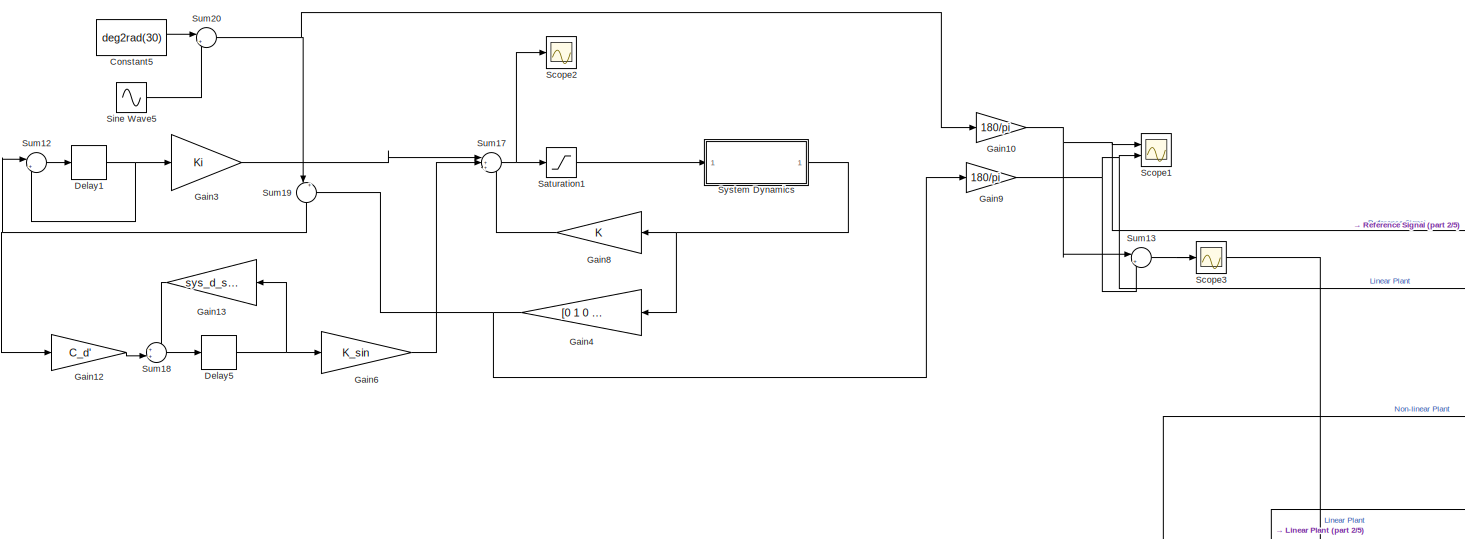
[diagram: root canvas - part 1/5, top center region]
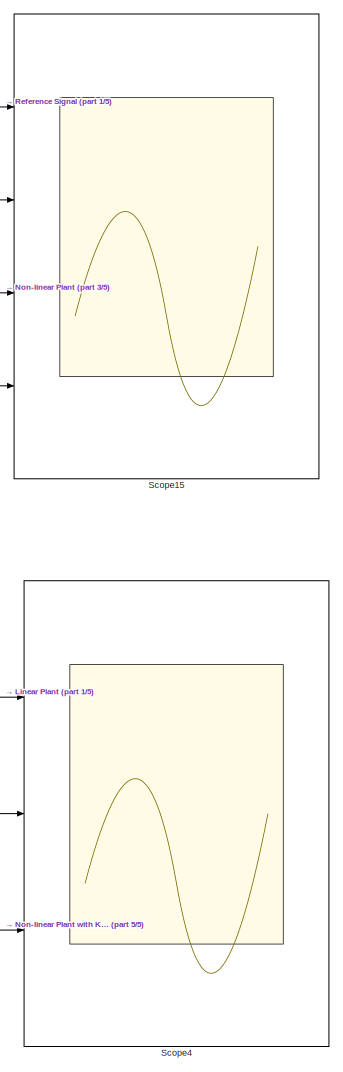
[diagram: root canvas - part 2/5, middle right region]
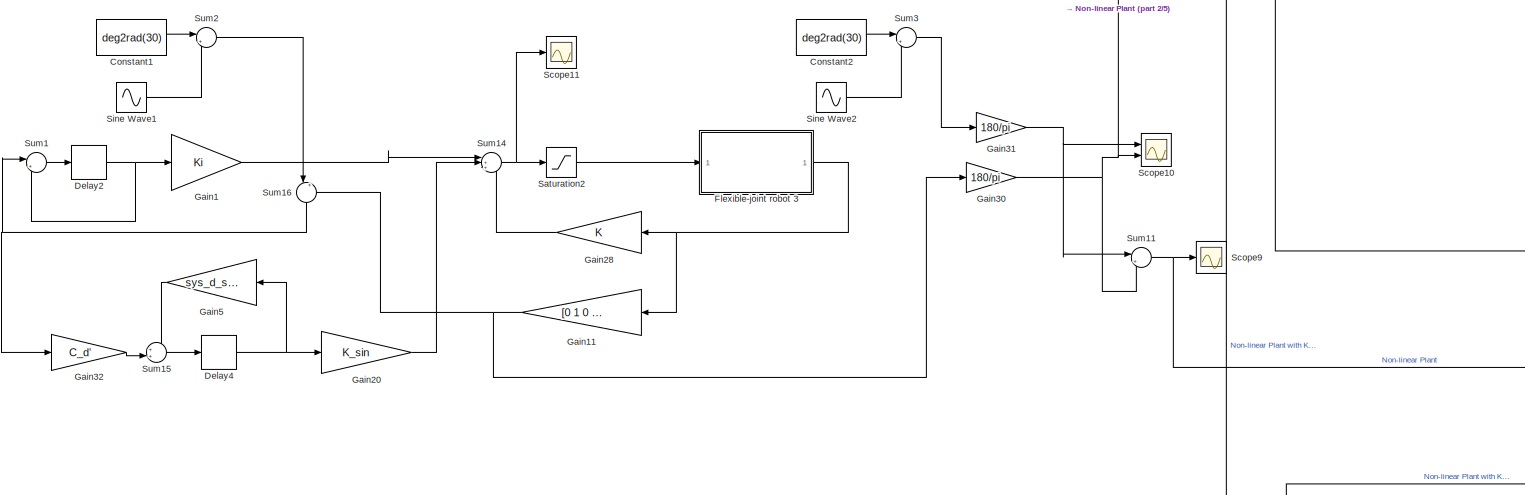
[diagram: root canvas - part 3/5, central region]
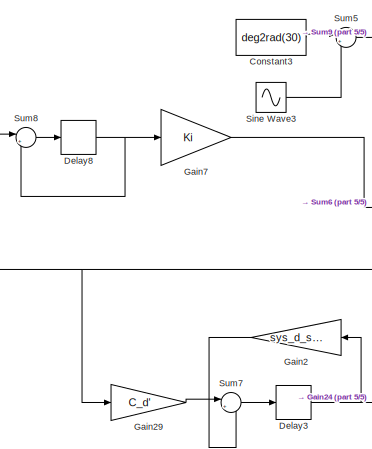
[diagram: root canvas - part 4/5, bottom left region]
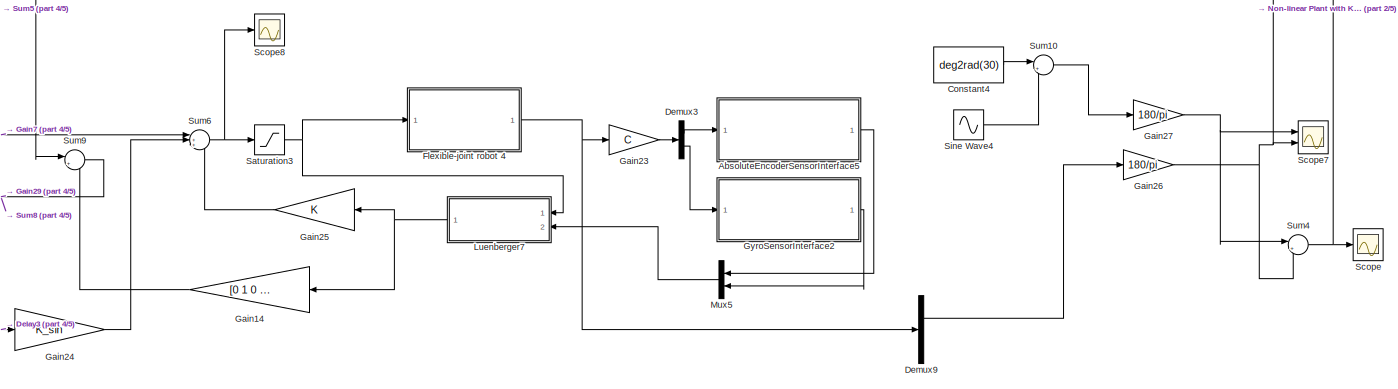
[diagram: root canvas - part 5/5, bottom center region]
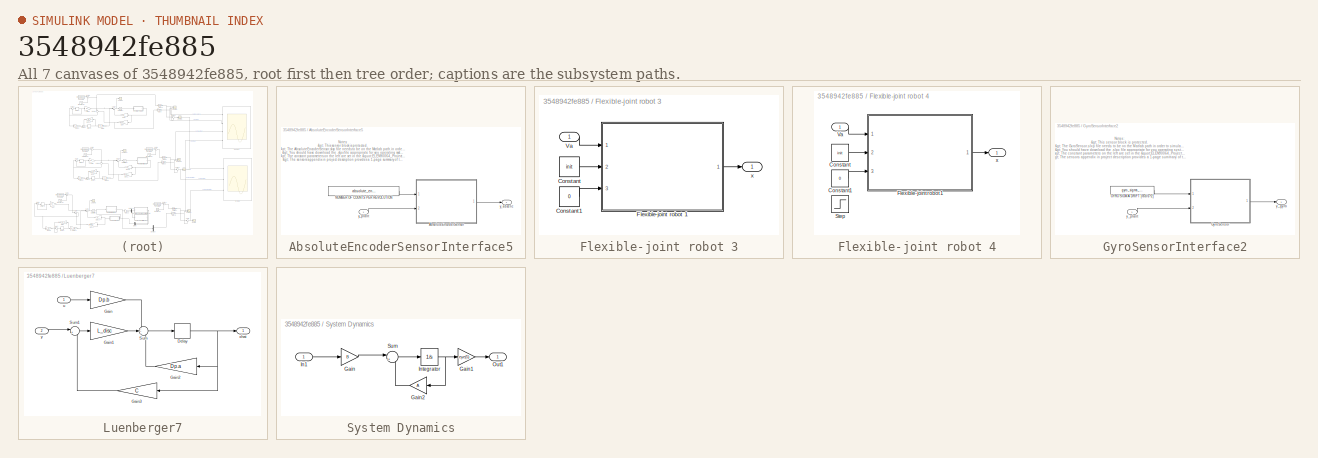
[diagram: thumbnail index - all 7 canvases of the model, root first then tree order]
MODEL slx_3548942fe885
KIND model
CONFIG AbsTol = auto
CONFIG EnableMultiTasking = off
CONFIG FixedStep = auto
CONFIG MaxStep = auto
CONFIG MinStep = auto
CONFIG RelTol = 1e-3
CONFIG SampleTimeConstraint = Unconstrained
CONFIG SolverName = ode45
CONFIG StartTime = 0.0
CONFIG StopTime = 11
BLOCK [SubSystem] AbsoluteEncoderSensorInterface5
  Ports = [1, 1]
  RequestExecContextInheritance = off
  TreatAsAtomicUnit = on
BLOCK [ModelReference] AbsoluteEncoderSensorInterface5/AbsoluteEncoderSensor
  CopyOfModelProtected = on
  ModelNameDialog = AbsoluteEncoderSensor.slxp
  ModelReferenceVersion = 1.16
  Ports = [2, 1]
BLOCK [Constant] AbsoluteEncoderSensorInterface5/NUMBER OF COUNTS PER REVOLUTION
  Value = absolute_encoder_counts_per_revolution
BLOCK [Outport] AbsoluteEncoderSensorInterface5/y_absenc
BLOCK [Inport] AbsoluteEncoderSensorInterface5/y_plant
BLOCK [Constant] Constant1
  Value = deg2rad(30)
BLOCK [Constant] Constant2
  Value = deg2rad(30)
BLOCK [Constant] Constant3
  Value = deg2rad(30)
BLOCK [Constant] Constant4
  Value = deg2rad(30)
BLOCK [Constant] Constant5
  Value = deg2rad(30)
BLOCK [Delay] Delay1
  DelayLength = 1
  InputPortMap = u0
  Ports = [1, 1]
BLOCK [Delay] Delay2
  DelayLength = 1
  InputPortMap = u0
  Ports = [1, 1]
BLOCK [Delay] Delay3
  DelayLength = 1
  InputPortMap = u0
  Ports = [1, 1]
BLOCK [Delay] Delay4
  DelayLength = 1
  InputPortMap = u0
  Ports = [1, 1]
BLOCK [Delay] Delay5
  DelayLength = 1
  InputPortMap = u0
  Ports = [1, 1]
BLOCK [Delay] Delay8
  DelayLength = 1
  InputPortMap = u0
  Ports = [1, 1]
BLOCK [Demux] Demux3
  Outputs = 2
  Ports = [1, 2]
BLOCK [Demux] Demux9
  Outputs = 5
  Ports = [1, 5]
BLOCK [SubSystem] Flexible-joint robot 3
  Ports = [1, 1]
  RequestExecContextInheritance = off
BLOCK [Constant] Flexible-joint robot 3/Constant
  Value = init
BLOCK [Constant] Flexible-joint robot 3/Constant1
  Value = 0
BLOCK [ModelReference] Flexible-joint robot 3/Flexible-joint robot 1
  CopyOfModelProtected = on
  ModelNameDialog = Flexible_joint_robot_1
  ModelReferenceVersion = 1.65
  Ports = [3, 1]
BLOCK [Inport] Flexible-joint robot 3/Va
BLOCK [Outport] Flexible-joint robot 3/x
BLOCK [SubSystem] Flexible-joint robot 4
  Ports = [1, 1]
  RequestExecContextInheritance = off
BLOCK [Constant] Flexible-joint robot 4/Constant
  Value = init
BLOCK [Constant] Flexible-joint robot 4/Constant1
  Value = 0
BLOCK [ModelReference] Flexible-joint robot 4/Flexible-joint robot 1
  CopyOfModelProtected = on
  ModelNameDialog = Flexible_joint_robot_1
  ModelReferenceVersion = 1.65
  Ports = [3, 1]
BLOCK [Step] Flexible-joint robot 4/Step
  After = 0.05
  SampleTime = 0
BLOCK [Inport] Flexible-joint robot 4/Va
BLOCK [Outport] Flexible-joint robot 4/x
BLOCK [Gain] Gain1
  Gain = Ki
  Multiplication = Matrix(K*u) (u vector)
BLOCK [Gain] Gain10
  Gain = 180/pi
BLOCK [Gain] Gain11
  Gain = [0 1 0 0 0]
  Multiplication = Matrix(K*u) (u vector)
  NameLocation = top
BLOCK [Gain] Gain12
  Gain = C_d'
  Multiplication = Matrix(K*u) (u vector)
BLOCK [Gain] Gain13
  Gain = sys_d_sin.a'
  Multiplication = Matrix(K*u) (u vector)
  NameLocation = top
BLOCK [Gain] Gain14
  Gain = [0 1 0 0 0]
  Multiplication = Matrix(K*u) (u vector)
  NameLocation = top
BLOCK [Gain] Gain2
  Gain = sys_d_sin.a'
  Multiplication = Matrix(K*u) (u vector)
  NameLocation = top
BLOCK [Gain] Gain20
  Gain = K_sin
  Multiplication = Matrix(K*u) (u vector)
BLOCK [Gain] Gain23
  Gain = C
  Multiplication = Matrix(K*u)
BLOCK [Gain] Gain24
  Gain = K_sin
  Multiplication = Matrix(K*u) (u vector)
BLOCK [Gain] Gain25
  Gain = K
  Multiplication = Matrix(K*u)
  NameLocation = top
BLOCK [Gain] Gain26
  Gain = 180/pi
BLOCK [Gain] Gain27
  Gain = 180/pi
BLOCK [Gain] Gain28
  Gain = K
  Multiplication = Matrix(K*u)
  NameLocation = top
BLOCK [Gain] Gain29
  Gain = C_d'
  Multiplication = Matrix(K*u) (u vector)
BLOCK [Gain] Gain3
  Gain = Ki
  Multiplication = Matrix(K*u) (u vector)
BLOCK [Gain] Gain30
  Gain = 180/pi
BLOCK [Gain] Gain31
  Gain = 180/pi
BLOCK [Gain] Gain32
  Gain = C_d'
  Multiplication = Matrix(K*u) (u vector)
BLOCK [Gain] Gain4
  Gain = [0 1 0 0 0]
  Multiplication = Matrix(K*u) (u vector)
  NameLocation = top
BLOCK [Gain] Gain5
  Gain = sys_d_sin.a'
  Multiplication = Matrix(K*u) (u vector)
  NameLocation = top
BLOCK [Gain] Gain6
  Gain = K_sin
  Multiplication = Matrix(K*u) (u vector)
BLOCK [Gain] Gain7
  Gain = Ki
  Multiplication = Matrix(K*u) (u vector)
BLOCK [Gain] Gain8
  Gain = K
  Multiplication = Matrix(K*u)
  NameLocation = top
BLOCK [Gain] Gain9
  Gain = 180/pi
BLOCK [SubSystem] GyroSensorInterface2
  Ports = [1, 1]
  RequestExecContextInheritance = off
  TreatAsAtomicUnit = on
BLOCK [Constant] GyroSensorInterface2/GYRO SIGMA DRIFT [rad//s^2]
  Value = gyro_sigma_drift
BLOCK [ModelReference] GyroSensorInterface2/GyroSensor
  CopyOfModelProtected = on
  ModelNameDialog = GyroSensor.slxp
  ModelReferenceVersion = 1.18
  Ports = [2, 1]
BLOCK [Outport] GyroSensorInterface2/y_gyro
BLOCK [Inport] GyroSensorInterface2/y_plant
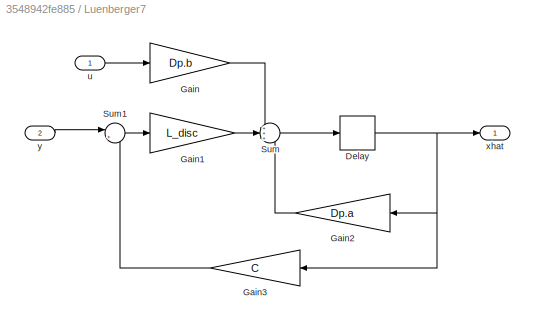
BLOCK [SubSystem] Luenberger7
  Ports = [2, 1]
  RequestExecContextInheritance = off
  TreatAsAtomicUnit = on
BLOCK [Delay] Luenberger7/Delay
  DelayLength = 1
  InputPortMap = u0
  Ports = [1, 1]
BLOCK [Gain] Luenberger7/Gain
  Gain = Dp.b
  Multiplication = Matrix(K*u) (u vector)
BLOCK [Gain] Luenberger7/Gain1
  Gain = L_disc
  Multiplication = Matrix(K*u) (u vector)
BLOCK [Gain] Luenberger7/Gain2
  Gain = Dp.a
  Multiplication = Matrix(K*u) (u vector)
  NameLocation = top
BLOCK [Gain] Luenberger7/Gain3
  Gain = C
  Multiplication = Matrix(K*u) (u vector)
  NameLocation = top
BLOCK [Sum] Luenberger7/Sum
  Inputs = +++
  Ports = [3, 1]
BLOCK [Sum] Luenberger7/Sum1
  Inputs = |+-
  Ports = [2, 1]
BLOCK [Inport] Luenberger7/u
BLOCK [Outport] Luenberger7/xhat
BLOCK [Inport] Luenberger7/y
  Port = 2
BLOCK [Mux] Mux5
  DisplayOption = bar
  Inputs = 2
  NameLocation = top
  Ports = [2, 1]
BLOCK [Saturate] Saturation1
  LowerLimit = -6
  UpperLimit = 6
BLOCK [Saturate] Saturation2
  LowerLimit = -6
  UpperLimit = 6
BLOCK [Saturate] Saturation3
  LowerLimit = -6
  UpperLimit = 6
BLOCK [Scope] Scope
  Floating = off
  NumInputPorts = 1
  Ports = [1]
  ScopeSpecificationString = Simulink.scopes.TimeScopeBlockCfg('CurrentConfiguration', extmgr.ConfigurationSet(extmgr.Configuration('Core','General UI',true),extmgr.Configuration('Core','Source UI',true),extmgr.Configuration('Sources','WiredSimulink',true,'DataLoggingVariableName','ScopeData4'),extmgr.Configuration('Visuals','Time Domain',true,'SerializedDisplays',{struct('MinYLimReal','-11.74633','MaxYLimReal','52.80653','YL...<+1444ch>
BLOCK [Scope] Scope1
  Floating = off
  NumInputPorts = 2
  Ports = [2]
  ScopeSpecificationString = Simulink.scopes.TimeScopeBlockCfg('CurrentConfiguration', extmgr.ConfigurationSet(extmgr.Configuration('Core','General UI',true),extmgr.Configuration('Core','Source UI',true),extmgr.Configuration('Sources','WiredSimulink',true),extmgr.Configuration('Visuals','Time Domain',true,'SerializedDisplays',{struct('MinYLimReal','-4.04292','MaxYLimReal','68.59449','YLabelReal','','MinYLimMag','0.00000','Max...<+1429ch>
BLOCK [Scope] Scope10
  Floating = off
  NumInputPorts = 2
  Ports = [2]
  ScopeSpecificationString = Simulink.scopes.TimeScopeBlockCfg('CurrentConfiguration', extmgr.ConfigurationSet(extmgr.Configuration('Core','General UI',true),extmgr.Configuration('Core','Source UI',true),extmgr.Configuration('Sources','WiredSimulink',true,'DataLoggingVariableName','ScopeData1'),extmgr.Configuration('Visuals','Time Domain',true,'SerializedDisplays',{struct('MinYLimReal','-8.46363','MaxYLimReal','75.27305','YLa...<+1462ch>
BLOCK [Scope] Scope11
  Floating = off
  NumInputPorts = 1
  Ports = [1]
  ScopeSpecificationString = Simulink.scopes.TimeScopeBlockCfg('CurrentConfiguration', extmgr.ConfigurationSet(extmgr.Configuration('Core','General UI',true),extmgr.Configuration('Core','Source UI',true),extmgr.Configuration('Sources','WiredSimulink',true,'DataLoggingVariableName','ScopeData2'),extmgr.Configuration('Visuals','Time Domain',true,'SerializedDisplays',{struct('MinYLimReal','-0.74704','MaxYLimReal','0.75328','YLab...<+1383ch>
BLOCK [Scope] Scope15
  Floating = off
  NumInputPorts = 4
  Ports = [4]
  ScopeSpecificationString = Simulink.scopes.TimeScopeBlockCfg('CurrentConfiguration', extmgr.ConfigurationSet(extmgr.Configuration('Core','General UI',true,'FigureColor',[1 1 1]),extmgr.Configuration('Core','Source UI',true),extmgr.Configuration('Sources','WiredSimulink',true,'DataLoggingVariableName','ScopeData9'),extmgr.Configuration('Visuals','Time Domain',true,'SerializedDisplays',{struct('MinYLimReal','-13.21636','MaxYL...<+2538ch>
BLOCK [Scope] Scope2
  Floating = off
  NumInputPorts = 1
  Ports = [1]
  ScopeSpecificationString = Simulink.scopes.TimeScopeBlockCfg('CurrentConfiguration', extmgr.ConfigurationSet(extmgr.Configuration('Core','General UI',true),extmgr.Configuration('Core','Source UI',true),extmgr.Configuration('Sources','WiredSimulink',true,'DataLoggingVariableName','ScopeData7'),extmgr.Configuration('Visuals','Time Domain',true,'SerializedDisplays',{struct('MinYLimReal','-8.34446','MaxYLimReal','18.70742','YLa...<+1387ch>
BLOCK [Scope] Scope3
  Floating = off
  NumInputPorts = 1
  Ports = [1]
  ScopeSpecificationString = Simulink.scopes.TimeScopeBlockCfg('CurrentConfiguration', extmgr.ConfigurationSet(extmgr.Configuration('Core','General UI',true),extmgr.Configuration('Core','Source UI',true),extmgr.Configuration('Sources','WiredSimulink',true,'DataLoggingVariableName','ScopeData8'),extmgr.Configuration('Visuals','Time Domain',true,'SerializedDisplays',{struct('MinYLimReal','-0.00317','MaxYLimReal','0.00138','YLab...<+1415ch>
BLOCK [Scope] Scope4
  Floating = off
  NumInputPorts = 3
  Ports = [3]
  ScopeSpecificationString = Simulink.scopes.TimeScopeBlockCfg('CurrentConfiguration', extmgr.ConfigurationSet(extmgr.Configuration('Core','General UI',true,'FigureColor',[1 1 1]),extmgr.Configuration('Core','Source UI',true),extmgr.Configuration('Sources','WiredSimulink',true,'DataLoggingVariableName','ScopeData10'),extmgr.Configuration('Visuals','Time Domain',true,'SerializedDisplays',{struct('MinYLimReal','-45.54688','MaxY...<+2491ch>
BLOCK [Scope] Scope7
  Floating = off
  NumInputPorts = 2
  Ports = [2]
  ScopeSpecificationString = Simulink.scopes.TimeScopeBlockCfg('CurrentConfiguration', extmgr.ConfigurationSet(extmgr.Configuration('Core','General UI',true),extmgr.Configuration('Core','Source UI',true),extmgr.Configuration('Sources','WiredSimulink',true,'DataLoggingVariableName','ScopeData5'),extmgr.Configuration('Visuals','Time Domain',true,'SerializedDisplays',{struct('MinYLimReal','-8.17143','MaxYLimReal','68.09844','YLa...<+1481ch>
BLOCK [Scope] Scope8
  Floating = off
  NumInputPorts = 1
  Ports = [1]
  ScopeSpecificationString = Simulink.scopes.TimeScopeBlockCfg('CurrentConfiguration', extmgr.ConfigurationSet(extmgr.Configuration('Core','General UI',true),extmgr.Configuration('Core','Source UI',true),extmgr.Configuration('Sources','WiredSimulink',true,'DataLoggingVariableName','ScopeData6'),extmgr.Configuration('Visuals','Time Domain',true,'SerializedDisplays',{struct('MinYLimReal','-7.54141','MaxYLimReal','7.71869','YLab...<+1382ch>
BLOCK [Scope] Scope9
  Floating = off
  NumInputPorts = 1
  Ports = [1]
  ScopeSpecificationString = Simulink.scopes.TimeScopeBlockCfg('CurrentConfiguration', extmgr.ConfigurationSet(extmgr.Configuration('Core','General UI',true),extmgr.Configuration('Core','Source UI',true),extmgr.Configuration('Sources','WiredSimulink',true,'DataLoggingVariableName','ScopeData3'),extmgr.Configuration('Visuals','Time Domain',true,'SerializedDisplays',{struct('MinYLimReal','-7.48944','MaxYLimReal','7.12736','YLab...<+1419ch>
BLOCK [Sin] Sine Wave1
  Amplitude = deg2rad(30)
  Frequency = w
  Phase = deg2rad(30)
  Ports = [0, 1]
  SampleTime = 0
BLOCK [Sin] Sine Wave2
  Amplitude = deg2rad(30)
  Frequency = w
  Phase = deg2rad(30)
  Ports = [0, 1]
  SampleTime = 0
BLOCK [Sin] Sine Wave3
  Amplitude = deg2rad(30)
  Frequency = w
  Phase = deg2rad(30)
  Ports = [0, 1]
  SampleTime = 0
BLOCK [Sin] Sine Wave4
  Amplitude = deg2rad(30)
  Frequency = w
  Phase = deg2rad(30)
  Ports = [0, 1]
  SampleTime = 0
BLOCK [Sin] Sine Wave5
  Amplitude = deg2rad(30)
  Frequency = w
  Phase = deg2rad(30)
  Ports = [0, 1]
  SampleTime = 0
BLOCK [Sum] Sum1
  Inputs = |++
  Ports = [2, 1]
BLOCK [Sum] Sum10
  Inputs = |++
  Ports = [2, 1]
BLOCK [Sum] Sum11
  Inputs = |+-
  Ports = [2, 1]
BLOCK [Sum] Sum12
  Inputs = |++
  Ports = [2, 1]
BLOCK [Sum] Sum13
  Inputs = |+-
  Ports = [2, 1]
BLOCK [Sum] Sum14
  Inputs = |++-
  Ports = [3, 1]
BLOCK [Sum] Sum15
  Inputs = ++|
  Ports = [2, 1]
BLOCK [Sum] Sum16
  Inputs = |+-
  NameLocation = left
  Ports = [2, 1]
BLOCK [Sum] Sum17
  Inputs = |++-
  Ports = [3, 1]
BLOCK [Sum] Sum18
  Inputs = ++|
  Ports = [2, 1]
BLOCK [Sum] Sum19
  Inputs = |+-
  NameLocation = left
  Ports = [2, 1]
BLOCK [Sum] Sum2
  Inputs = |++
  Ports = [2, 1]
BLOCK [Sum] Sum20
  Inputs = |++
  Ports = [2, 1]
BLOCK [Sum] Sum3
  Inputs = |++
  Ports = [2, 1]
BLOCK [Sum] Sum4
  Inputs = |+-
  Ports = [2, 1]
BLOCK [Sum] Sum5
  Inputs = |++
  Ports = [2, 1]
BLOCK [Sum] Sum6
  Inputs = |++-
  Ports = [3, 1]
BLOCK [Sum] Sum7
  Inputs = |++
  Ports = [2, 1]
BLOCK [Sum] Sum8
  Inputs = |++
  Ports = [2, 1]
BLOCK [Sum] Sum9
  Inputs = |+-
  Ports = [2, 1]
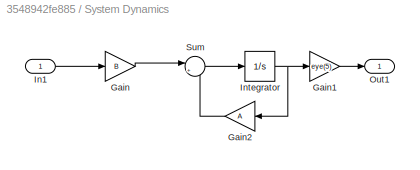
BLOCK [SubSystem] System Dynamics
  Ports = [1, 1]
  RequestExecContextInheritance = off
  TreatAsAtomicUnit = on
BLOCK [Gain] System Dynamics/Gain
  Gain = B
  Multiplication = Matrix(K*u)
BLOCK [Gain] System Dynamics/Gain1
  Gain = eye(5)
  Multiplication = Matrix(K*u)
BLOCK [Gain] System Dynamics/Gain2
  Gain = A
  Multiplication = Matrix(K*u)
  NameLocation = top
BLOCK [Inport] System Dynamics/In1
BLOCK [Integrator] System Dynamics/Integrator
  Ports = [1, 1]
BLOCK [Outport] System Dynamics/Out1
BLOCK [Sum] System Dynamics/Sum
  Inputs = |++
  Ports = [2, 1]
ANNOTATION AbsoluteEncoderSensorInterface5: Notes: > This sensor block is protected. > The AbsoluteEncoderSensor.slxp file needs to be on the Matlab path in order to simulate this sensor. > You should have download the .slpx file appropriate for you operating system {Windows, Mac, Linux}. > The constant parameters on the left are set in the " ELEN90064_Project_Parameters.m " script. > The sensors appendix in project description provides a 1...<+190ch>
ANNOTATION GyroSensorInterface2: Notes: > This sensor block is protected. > The GyroSensor.slxp file needs to be on the Matlab path in order to simulate this sensor. > You should have download the .slpx file appropriate for you operating system {Windows, Mac, Linux}. > The constant parameters on the left are set in the " ELEN90064_Project_Parameters.m " script. > The sensors appendix in project description provides a 1-page summa...<+179ch>
LINE AbsoluteEncoderSensorInterface5/AbsoluteEncoderSensor:1 -> AbsoluteEncoderSensorInterface5/y_absenc:1
LINE AbsoluteEncoderSensorInterface5/NUMBER OF COUNTS PER REVOLUTION:1 -> AbsoluteEncoderSensorInterface5/AbsoluteEncoderSensor:1
LINE AbsoluteEncoderSensorInterface5/y_plant:1 -> AbsoluteEncoderSensorInterface5/AbsoluteEncoderSensor:2
LINE AbsoluteEncoderSensorInterface5:1 -> Mux5:1
LINE Constant1:1 -> Sum2:1
LINE Constant2:1 -> Sum3:1
LINE Constant3:1 -> Sum5:1
LINE Constant4:1 -> Sum10:1
LINE Constant5:1 -> Sum20:1
NET Delay1:1 -> Gain3:1, Sum12:2
NET Delay2:1 -> Gain1:1, Sum1:2
NET Delay3:1 -> Gain24:1, Gain2:1
NET Delay4:1 -> Gain20:1, Gain5:1
NET Delay5:1 -> Gain13:1, Gain6:1
NET Delay8:1 -> Gain7:1, Sum8:2
LINE Demux3:1 -> AbsoluteEncoderSensorInterface5:1
LINE Demux3:2 -> GyroSensorInterface2:1
LINE Demux9:2 -> Gain26:1
LINE Flexible-joint robot 3/Constant1:1 -> Flexible-joint robot 3/Flexible-joint robot 1:3
LINE Flexible-joint robot 3/Constant:1 -> Flexible-joint robot 3/Flexible-joint robot 1:2
LINE Flexible-joint robot 3/Flexible-joint robot 1:1 -> Flexible-joint robot 3/x:1
LINE Flexible-joint robot 3/Va:1 -> Flexible-joint robot 3/Flexible-joint robot 1:1
NET Flexible-joint robot 3:1 -> Gain11:1, Gain28:1
LINE Flexible-joint robot 4/Constant1:1 -> Flexible-joint robot 4/Flexible-joint robot 1:3
LINE Flexible-joint robot 4/Constant:1 -> Flexible-joint robot 4/Flexible-joint robot 1:2
LINE Flexible-joint robot 4/Flexible-joint robot 1:1 -> Flexible-joint robot 4/x:1
LINE Flexible-joint robot 4/Va:1 -> Flexible-joint robot 4/Flexible-joint robot 1:1
NET Flexible-joint robot 4:1 -> Demux9:1, Gain23:1
NET Gain10:1 -> Scope15:1, Scope1:1, Sum13:1
NET Gain11:1 -> Gain30:1, Sum16:2
LINE Gain12:1 -> Sum18:2
LINE Gain13:1 -> Sum18:1
LINE Gain14:1 -> Sum9:2
LINE Gain1:1 -> Sum14:1
LINE Gain20:1 -> Sum14:2
LINE Gain23:1 -> Demux3:1
LINE Gain24:1 -> Sum6:2
LINE Gain25:1 -> Sum6:3
NET Gain26:1 -> Scope15:4, Scope7:2, Sum4:2
NET Gain27:1 -> Scope7:1, Sum4:1
LINE Gain28:1 -> Sum14:3
LINE Gain29:1 -> Sum7:1
LINE Gain2:1 -> Sum7:2
NET Gain30:1 -> Scope10:2, Scope15:3, Sum11:2
NET Gain31:1 -> Scope10:1, Sum11:1
LINE Gain32:1 -> Sum15:2
LINE Gain3:1 -> Sum17:1
NET Gain4:1 -> Gain9:1, Sum19:2
LINE Gain5:1 -> Sum15:1
LINE Gain6:1 -> Sum17:2
LINE Gain7:1 -> Sum6:1
LINE Gain8:1 -> Sum17:3
NET Gain9:1 -> Scope15:2, Scope1:2, Sum13:2
LINE GyroSensorInterface2/GYRO SIGMA DRIFT [rad//s^2]:1 -> GyroSensorInterface2/GyroSensor:1
LINE GyroSensorInterface2/GyroSensor:1 -> GyroSensorInterface2/y_gyro:1
LINE GyroSensorInterface2/y_plant:1 -> GyroSensorInterface2/GyroSensor:2
LINE GyroSensorInterface2:1 -> Mux5:2
NET Luenberger7/Delay:1 -> Luenberger7/Gain2:1, Luenberger7/Gain3:1, Luenberger7/xhat:1
LINE Luenberger7/Gain1:1 -> Luenberger7/Sum:2
LINE Luenberger7/Gain2:1 -> Luenberger7/Sum:3
LINE Luenberger7/Gain3:1 -> Luenberger7/Sum1:2
LINE Luenberger7/Gain:1 -> Luenberger7/Sum:1
LINE Luenberger7/Sum1:1 -> Luenberger7/Gain1:1
LINE Luenberger7/Sum:1 -> Luenberger7/Delay:1
LINE Luenberger7/u:1 -> Luenberger7/Gain:1
LINE Luenberger7/y:1 -> Luenberger7/Sum1:1
NET Luenberger7:1 -> Gain14:1, Gain25:1
LINE Mux5:1 -> Luenberger7:2
LINE Saturation1:1 -> System Dynamics:1
LINE Saturation2:1 -> Flexible-joint robot 3:1
NET Saturation3:1 -> Flexible-joint robot 4:1, Luenberger7:1
LINE Sine Wave1:1 -> Sum2:2
LINE Sine Wave2:1 -> Sum3:2
LINE Sine Wave3:1 -> Sum5:2
LINE Sine Wave4:1 -> Sum10:2
LINE Sine Wave5:1 -> Sum20:2
LINE Sum10:1 -> Gain27:1
NET Sum11:1 -> Scope4:2, Scope9:1
LINE Sum12:1 -> Delay1:1
NET Sum13:1 -> Scope3:1, Scope4:1
NET Sum14:1 -> Saturation2:1, Scope11:1
LINE Sum15:1 -> Delay4:1
NET Sum16:1 -> Gain32:1, Sum1:1
NET Sum17:1 -> Saturation1:1, Scope2:1
LINE Sum18:1 -> Delay5:1
NET Sum19:1 -> Gain12:1, Sum12:1
LINE Sum1:1 -> Delay2:1
NET Sum20:1 -> Gain10:1, Sum19:1
LINE Sum2:1 -> Sum16:1
LINE Sum3:1 -> Gain31:1
NET Sum4:1 -> Scope4:3, Scope:1
LINE Sum5:1 -> Sum9:1
NET Sum6:1 -> Saturation3:1, Scope8:1
LINE Sum7:1 -> Delay3:1
LINE Sum8:1 -> Delay8:1
NET Sum9:1 -> Gain29:1, Sum8:1
LINE System Dynamics/Gain1:1 -> System Dynamics/Out1:1
LINE System Dynamics/Gain2:1 -> System Dynamics/Sum:2
LINE System Dynamics/Gain:1 -> System Dynamics/Sum:1
LINE System Dynamics/In1:1 -> System Dynamics/Gain:1
NET System Dynamics/Integrator:1 -> System Dynamics/Gain1:1, System Dynamics/Gain2:1
LINE System Dynamics/Sum:1 -> System Dynamics/Integrator:1
NET System Dynamics:1 -> Gain4:1, Gain8:1
note: NET lines group one-source signal fan-out (src -> all destinations, sorted); 1:1 wires keep LINE
